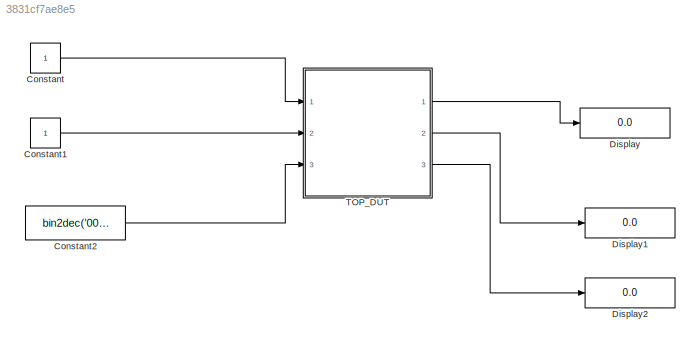
MODEL slx_3831cf7ae8e5
KIND model
CONFIG AbsTol = auto
CONFIG FixedStep = auto
CONFIG MaxStep = auto
CONFIG MinStep = auto
CONFIG RelTol = 1e-3
CONFIG SampleTimeConstraint = Unconstrained
CONFIG Solver = FixedStepDiscrete
CONFIG SolverMode = SingleTasking
CONFIG SolverName = FixedStepDiscrete
CONFIG StartTime = 0.0
CONFIG StopTime = 3
BLOCK [Constant] Constant
  OutDataTypeStr = boolean
BLOCK [Constant] Constant1
  OutDataTypeStr = int8
BLOCK [Constant] Constant2
  OutDataTypeStr = int8
  Value = bin2dec('00110101')
BLOCK [Display] Display
  Decimation = 1
  Ports = [1]
BLOCK [Display] Display1
  Decimation = 1
  Ports = [1]
BLOCK [Display] Display2
  Decimation = 1
  Ports = [1]
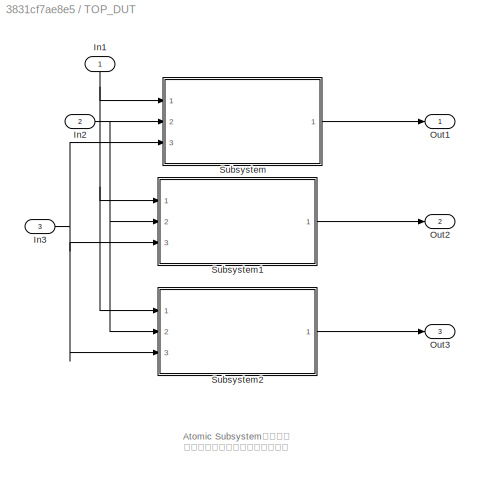
BLOCK [SubSystem] TOP_DUT
  Ports = [3, 3]
  RequestExecContextInheritance = off
  Variant = off
BLOCK [Inport] TOP_DUT/In1
  IconDisplay = Port number
BLOCK [Inport] TOP_DUT/In2
  IconDisplay = Port number
  Port = 2
BLOCK [Inport] TOP_DUT/In3
  IconDisplay = Port number
  Port = 3
BLOCK [Outport] TOP_DUT/Out1
  IconDisplay = Port number
BLOCK [Outport] TOP_DUT/Out2
  IconDisplay = Port number
  Port = 2
BLOCK [Outport] TOP_DUT/Out3
  IconDisplay = Port number
  Port = 3
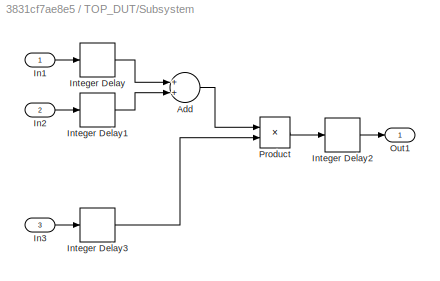
BLOCK [SubSystem] TOP_DUT/Subsystem
  Ports = [3, 1]
  RequestExecContextInheritance = off
  TreatAsAtomicUnit = on
  Variant = off
BLOCK [Sum] TOP_DUT/Subsystem/Add
  InputSameDT = off
  OutDataTypeStr = Inherit: Inherit via internal rule
  Ports = [2, 1]
  SaturateOnIntegerOverflow = off
BLOCK [Inport] TOP_DUT/Subsystem/In1
  IconDisplay = Port number
BLOCK [Inport] TOP_DUT/Subsystem/In2
  IconDisplay = Port number
  Port = 2
BLOCK [Inport] TOP_DUT/Subsystem/In3
  IconDisplay = Port number
  Port = 3
BLOCK [Delay] TOP_DUT/Subsystem/Integer Delay
  DelayLength = 1
  InputPortMap = u0
  InputProcessing = Inherited
  Ports = [1, 1]
  UserDataPersistent = on
BLOCK [Delay] TOP_DUT/Subsystem/Integer Delay1
  DelayLength = 1
  InputPortMap = u0
  InputProcessing = Inherited
  Ports = [1, 1]
  UserDataPersistent = on
BLOCK [Delay] TOP_DUT/Subsystem/Integer Delay2
  DelayLength = 1
  InputPortMap = u0
  InputProcessing = Inherited
  Ports = [1, 1]
  UserDataPersistent = on
BLOCK [Delay] TOP_DUT/Subsystem/Integer Delay3
  DelayLength = 1
  InputPortMap = u0
  InputProcessing = Inherited
  Ports = [1, 1]
  UserDataPersistent = on
BLOCK [Outport] TOP_DUT/Subsystem/Out1
  IconDisplay = Port number
BLOCK [Product] TOP_DUT/Subsystem/Product
  InputSameDT = off
  OutDataTypeStr = Inherit: Inherit via internal rule
  Ports = [2, 1]
  SaturateOnIntegerOverflow = off
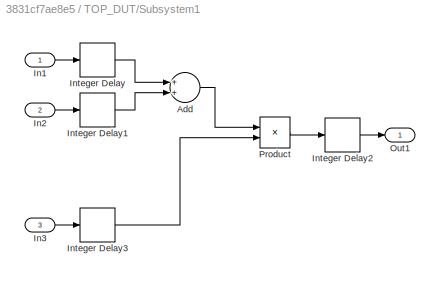
BLOCK [SubSystem] TOP_DUT/Subsystem1
  Ports = [3, 1]
  RequestExecContextInheritance = off
  TreatAsAtomicUnit = on
  Variant = off
BLOCK [Sum] TOP_DUT/Subsystem1/Add
  InputSameDT = off
  OutDataTypeStr = Inherit: Inherit via internal rule
  Ports = [2, 1]
  SaturateOnIntegerOverflow = off
BLOCK [Inport] TOP_DUT/Subsystem1/In1
  IconDisplay = Port number
BLOCK [Inport] TOP_DUT/Subsystem1/In2
  IconDisplay = Port number
  Port = 2
BLOCK [Inport] TOP_DUT/Subsystem1/In3
  IconDisplay = Port number
  Port = 3
BLOCK [Delay] TOP_DUT/Subsystem1/Integer Delay
  DelayLength = 1
  InputPortMap = u0
  InputProcessing = Inherited
  Ports = [1, 1]
  UserDataPersistent = on
BLOCK [Delay] TOP_DUT/Subsystem1/Integer Delay1
  DelayLength = 1
  InputPortMap = u0
  InputProcessing = Inherited
  Ports = [1, 1]
  UserDataPersistent = on
BLOCK [Delay] TOP_DUT/Subsystem1/Integer Delay2
  DelayLength = 1
  InputPortMap = u0
  InputProcessing = Inherited
  Ports = [1, 1]
  UserDataPersistent = on
BLOCK [Delay] TOP_DUT/Subsystem1/Integer Delay3
  DelayLength = 1
  InputPortMap = u0
  InputProcessing = Inherited
  Ports = [1, 1]
  UserDataPersistent = on
BLOCK [Outport] TOP_DUT/Subsystem1/Out1
  IconDisplay = Port number
BLOCK [Product] TOP_DUT/Subsystem1/Product
  InputSameDT = off
  OutDataTypeStr = Inherit: Inherit via internal rule
  Ports = [2, 1]
  SaturateOnIntegerOverflow = off
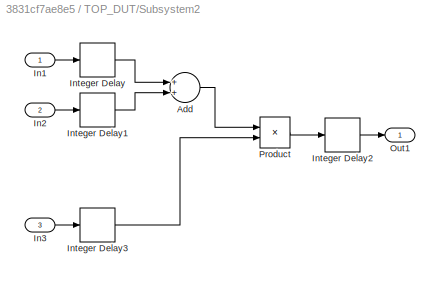
BLOCK [SubSystem] TOP_DUT/Subsystem2
  Ports = [3, 1]
  RequestExecContextInheritance = off
  TreatAsAtomicUnit = on
  Variant = off
BLOCK [Sum] TOP_DUT/Subsystem2/Add
  InputSameDT = off
  OutDataTypeStr = Inherit: Inherit via internal rule
  Ports = [2, 1]
  SaturateOnIntegerOverflow = off
BLOCK [Inport] TOP_DUT/Subsystem2/In1
  IconDisplay = Port number
BLOCK [Inport] TOP_DUT/Subsystem2/In2
  IconDisplay = Port number
  Port = 2
BLOCK [Inport] TOP_DUT/Subsystem2/In3
  IconDisplay = Port number
  Port = 3
BLOCK [Delay] TOP_DUT/Subsystem2/Integer Delay
  DelayLength = 1
  InputPortMap = u0
  InputProcessing = Inherited
  Ports = [1, 1]
  UserDataPersistent = on
BLOCK [Delay] TOP_DUT/Subsystem2/Integer Delay1
  DelayLength = 1
  InputPortMap = u0
  InputProcessing = Inherited
  Ports = [1, 1]
  UserDataPersistent = on
BLOCK [Delay] TOP_DUT/Subsystem2/Integer Delay2
  DelayLength = 1
  InputPortMap = u0
  InputProcessing = Inherited
  Ports = [1, 1]
  UserDataPersistent = on
BLOCK [Delay] TOP_DUT/Subsystem2/Integer Delay3
  DelayLength = 1
  InputPortMap = u0
  InputProcessing = Inherited
  Ports = [1, 1]
  UserDataPersistent = on
BLOCK [Outport] TOP_DUT/Subsystem2/Out1
  IconDisplay = Port number
BLOCK [Product] TOP_DUT/Subsystem2/Product
  InputSameDT = off
  OutDataTypeStr = Inherit: Inherit via internal rule
  Ports = [2, 1]
  SaturateOnIntegerOverflow = off
ANNOTATION TOP_DUT: Atomic Subsystemにすると 子モジュールはマクロ化されます
LINE Constant1:1 -> TOP_DUT:2
LINE Constant2:1 -> TOP_DUT:3
LINE Constant:1 -> TOP_DUT:1
NET TOP_DUT/In1:1 -> TOP_DUT/Subsystem1:1, TOP_DUT/Subsystem2:1, TOP_DUT/Subsystem:1
NET TOP_DUT/In2:1 -> TOP_DUT/Subsystem1:2, TOP_DUT/Subsystem2:2, TOP_DUT/Subsystem:2
NET TOP_DUT/In3:1 -> TOP_DUT/Subsystem1:3, TOP_DUT/Subsystem2:3, TOP_DUT/Subsystem:3
LINE TOP_DUT/Subsystem/Add:1 -> TOP_DUT/Subsystem/Product:1
LINE TOP_DUT/Subsystem/In1:1 -> TOP_DUT/Subsystem/Integer Delay:1
LINE TOP_DUT/Subsystem/In2:1 -> TOP_DUT/Subsystem/Integer Delay1:1
LINE TOP_DUT/Subsystem/In3:1 -> TOP_DUT/Subsystem/Integer Delay3:1
LINE TOP_DUT/Subsystem/Integer Delay1:1 -> TOP_DUT/Subsystem/Add:2
LINE TOP_DUT/Subsystem/Integer Delay2:1 -> TOP_DUT/Subsystem/Out1:1
LINE TOP_DUT/Subsystem/Integer Delay3:1 -> TOP_DUT/Subsystem/Product:2
LINE TOP_DUT/Subsystem/Integer Delay:1 -> TOP_DUT/Subsystem/Add:1
LINE TOP_DUT/Subsystem/Product:1 -> TOP_DUT/Subsystem/Integer Delay2:1
LINE TOP_DUT/Subsystem1/Add:1 -> TOP_DUT/Subsystem1/Product:1
LINE TOP_DUT/Subsystem1/In1:1 -> TOP_DUT/Subsystem1/Integer Delay:1
LINE TOP_DUT/Subsystem1/In2:1 -> TOP_DUT/Subsystem1/Integer Delay1:1
LINE TOP_DUT/Subsystem1/In3:1 -> TOP_DUT/Subsystem1/Integer Delay3:1
LINE TOP_DUT/Subsystem1/Integer Delay1:1 -> TOP_DUT/Subsystem1/Add:2
LINE TOP_DUT/Subsystem1/Integer Delay2:1 -> TOP_DUT/Subsystem1/Out1:1
LINE TOP_DUT/Subsystem1/Integer Delay3:1 -> TOP_DUT/Subsystem1/Product:2
LINE TOP_DUT/Subsystem1/Integer Delay:1 -> TOP_DUT/Subsystem1/Add:1
LINE TOP_DUT/Subsystem1/Product:1 -> TOP_DUT/Subsystem1/Integer Delay2:1
LINE TOP_DUT/Subsystem1:1 -> TOP_DUT/Out2:1
LINE TOP_DUT/Subsystem2/Add:1 -> TOP_DUT/Subsystem2/Product:1
LINE TOP_DUT/Subsystem2/In1:1 -> TOP_DUT/Subsystem2/Integer Delay:1
LINE TOP_DUT/Subsystem2/In2:1 -> TOP_DUT/Subsystem2/Integer Delay1:1
LINE TOP_DUT/Subsystem2/In3:1 -> TOP_DUT/Subsystem2/Integer Delay3:1
LINE TOP_DUT/Subsystem2/Integer Delay1:1 -> TOP_DUT/Subsystem2/Add:2
LINE TOP_DUT/Subsystem2/Integer Delay2:1 -> TOP_DUT/Subsystem2/Out1:1
LINE TOP_DUT/Subsystem2/Integer Delay3:1 -> TOP_DUT/Subsystem2/Product:2
LINE TOP_DUT/Subsystem2/Integer Delay:1 -> TOP_DUT/Subsystem2/Add:1
LINE TOP_DUT/Subsystem2/Product:1 -> TOP_DUT/Subsystem2/Integer Delay2:1
LINE TOP_DUT/Subsystem2:1 -> TOP_DUT/Out3:1
LINE TOP_DUT/Subsystem:1 -> TOP_DUT/Out1:1
LINE TOP_DUT:1 -> Display:1
LINE TOP_DUT:2 -> Display1:1
LINE TOP_DUT:3 -> Display2:1
note: NET lines group one-source signal fan-out (src -> all destinations, sorted); 1:1 wires keep LINE
